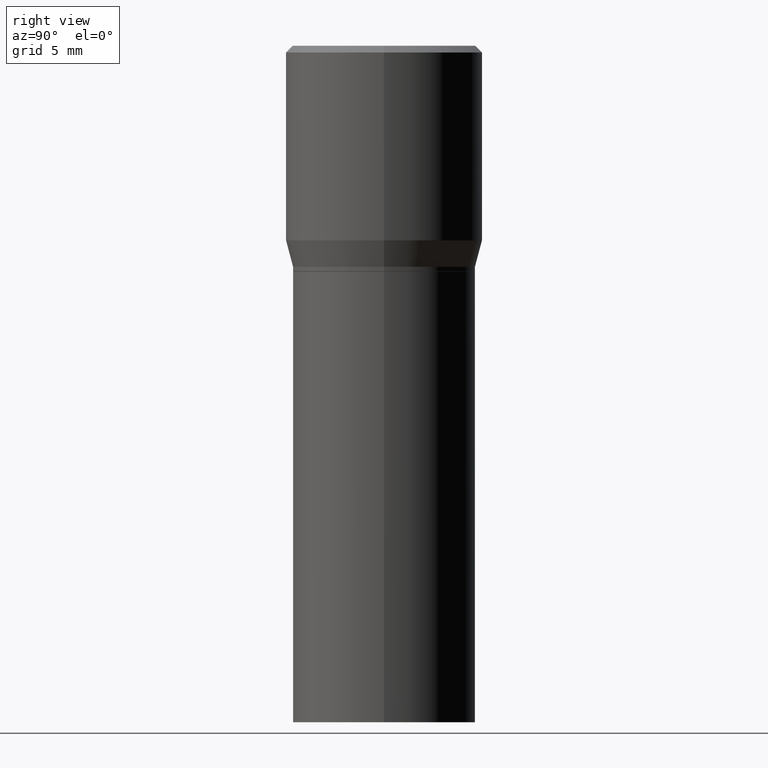
[diagram: clean part render]
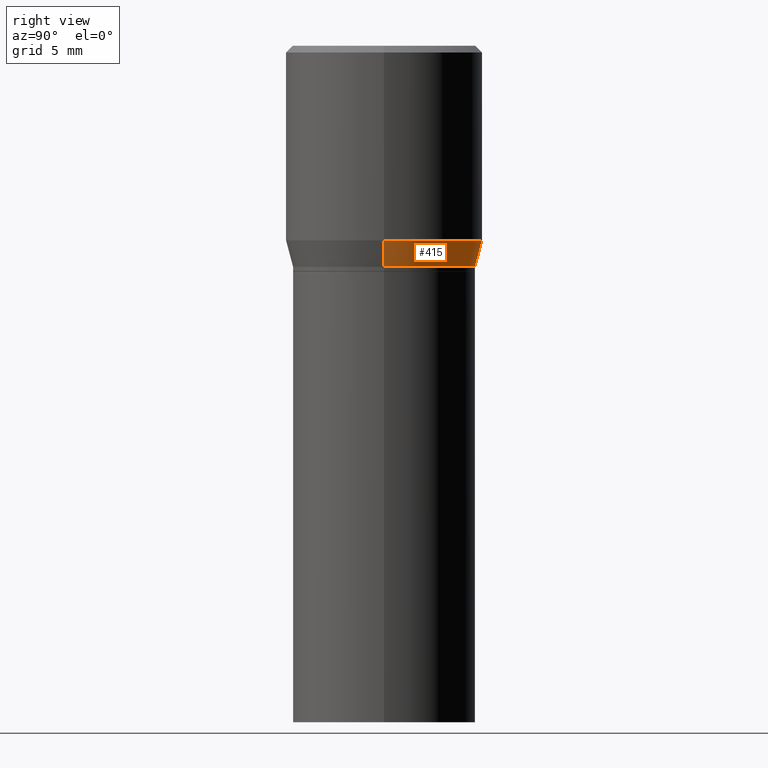
[diagram: same view with one face highlighted and labeled with its STEP entity id]
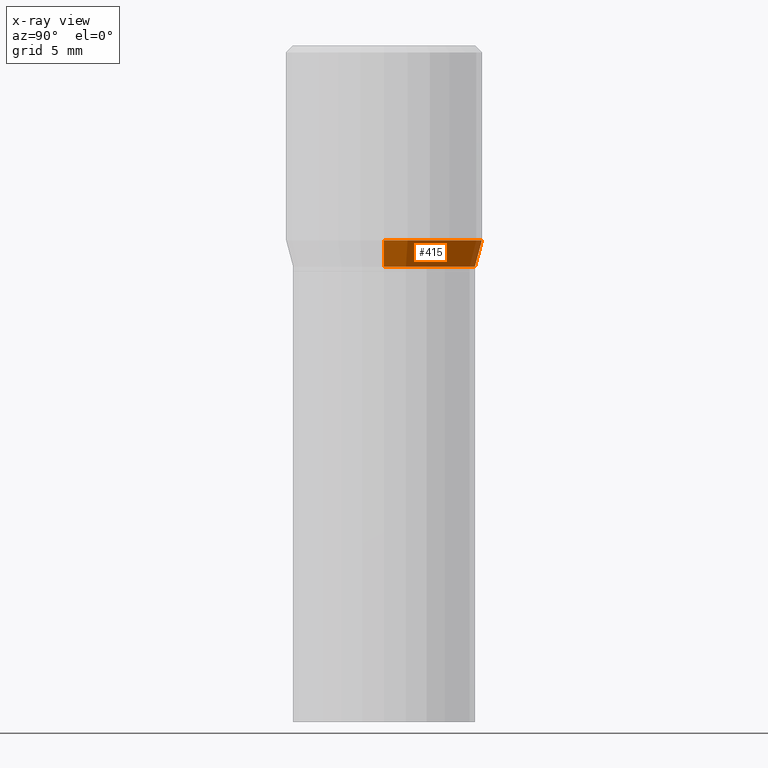
[diagram: x-ray of the same camera — body ghosted, the highlighted face saturated]
A machine part, right view. The second image highlights one B-rep face of the part: STEP entity #415.
The next image is the same camera in x-ray: the body ghosted, the highlighted face saturated — about 0% of this face is hidden behind the body in this view.
In plain terms, the highlighted conical surface has half-angle 15 deg.
Its self-contained STEP definition (entity closure, byte-faithful):
#1 = DIRECTION ( 'NONE',  ( -2.445468806185136597E-29, 3.491481338843145583E-15, 1.000000000000000000 ) ) ;
#4 = VERTEX_POINT ( 'NONE', #233 ) ;
#8 = DIRECTION ( 'NONE',  ( -2.445468806185136597E-29, 3.491481338843145583E-15, 1.000000000000000000 ) ) ;
#27 = LINE ( 'NONE', #269, #381 ) ;
#57 = ORIENTED_EDGE ( 'NONE', *, *, #361, .F. ) ;
#68 = VERTEX_POINT ( 'NONE', #430 ) ;
#79 = CARTESIAN_POINT ( 'NONE',  ( -0.2031000000000000583, -1.101508221355132898E-16, -0.4900000000000001021 ) ) ;
#113 = VERTEX_POINT ( 'NONE', #173 ) ;
#120 = ORIENTED_EDGE ( 'NONE', *, *, #314, .F. ) ;
#173 = CARTESIAN_POINT ( 'NONE',  ( -0.2187500000000000000, 4.741191543335144142E-17, -0.4315934048615475138 ) ) ;
#174 = DIRECTION ( 'NONE',  ( 1.000000000000000000, -6.982962677686265922E-15, 0.000000000000000000 ) ) ;
#196 = DIRECTION ( 'NONE',  ( -0.2588190451025211836, 5.211531920934547886E-15, 0.9659258262890679791 ) ) ;
#233 = CARTESIAN_POINT ( 'NONE',  ( 0.2187500000000000000, -3.034423404785738170E-15, -0.4315934048615475138 ) ) ;
#234 = ORIENTED_EDGE ( 'NONE', *, *, #289, .T. ) ;
#238 = CIRCLE ( 'NONE', #332, 0.2187500000000000000 ) ;
#242 = CIRCLE ( 'NONE', #382, 0.2031000000000000583 ) ;
#243 = AXIS2_PLACEMENT_3D ( 'NONE', #264, #266, #397 ) ;
#251 = EDGE_CURVE ( 'NONE', #68, #449, #242, .T. ) ;
#257 = LINE ( 'NONE', #461, #303 ) ;
#261 = DIRECTION ( 'NONE',  ( 1.000000000000000000, -6.982962677686265133E-15, 0.000000000000000000 ) ) ;
#264 = CARTESIAN_POINT ( 'NONE',  ( 1.198279715030717173E-29, -1.710825856033141537E-15, -0.4900000000000001021 ) ) ;
#266 = DIRECTION ( 'NONE',  ( -2.445468806185136597E-29, 3.491481338843145583E-15, 1.000000000000000000 ) ) ;
#269 = CARTESIAN_POINT ( 'NONE',  ( -0.2031000000000000583, -2.677135597043777931E-16, -0.4900000000000001021 ) ) ;
#289 = EDGE_CURVE ( 'NONE', #449, #113, #27, .T. ) ;
#291 = DIRECTION ( 'NONE',  ( 0.2588190451025211836, 1.565188264969622559E-15, 0.9659258262890679791 ) ) ;
#303 = VECTOR ( 'NONE', #291, 39.37007874015748854 ) ;
#314 = EDGE_CURVE ( 'NONE', #68, #4, #257, .T. ) ;
#328 = ORIENTED_EDGE ( 'NONE', *, *, #251, .T. ) ;
#332 = AXIS2_PLACEMENT_3D ( 'NONE', #431, #8, #261 ) ;
#337 = FACE_OUTER_BOUND ( 'NONE', #432, .T. ) ;
#361 = EDGE_CURVE ( 'NONE', #4, #113, #238, .T. ) ;
#373 = CARTESIAN_POINT ( 'NONE',  ( 1.198279715030717173E-29, -1.710825856033141537E-15, -0.4900000000000001021 ) ) ;
#381 = VECTOR ( 'NONE', #196, 39.37007874015748854 ) ;
#382 = AXIS2_PLACEMENT_3D ( 'NONE', #373, #1, #174 ) ;
#397 = DIRECTION ( 'NONE',  ( 1.000000000000000000, -6.982962677686265922E-15, 0.000000000000000000 ) ) ;
#415 = ADVANCED_FACE ( 'NONE', ( #337 ), #426, .T. ) ;
#426 = CONICAL_SURFACE ( 'NONE', #243, 0.2031000000000000583, 0.2617993877991499074 ) ;
#430 = CARTESIAN_POINT ( 'NONE',  ( 0.2031000000000000583, -3.129065575871222509E-15, -0.4900000000000001021 ) ) ;
#431 = CARTESIAN_POINT ( 'NONE',  ( 1.055448208544146876E-29, -1.506900319041867721E-15, -0.4315934048615475138 ) ) ;
#432 = EDGE_LOOP ( 'NONE', ( #328, #234, #57, #120 ) ) ;
#449 = VERTEX_POINT ( 'NONE', #79 ) ;
#461 = CARTESIAN_POINT ( 'NONE',  ( 0.2031000000000000583, -3.129065575871222509E-15, -0.4900000000000001021 ) ) ;